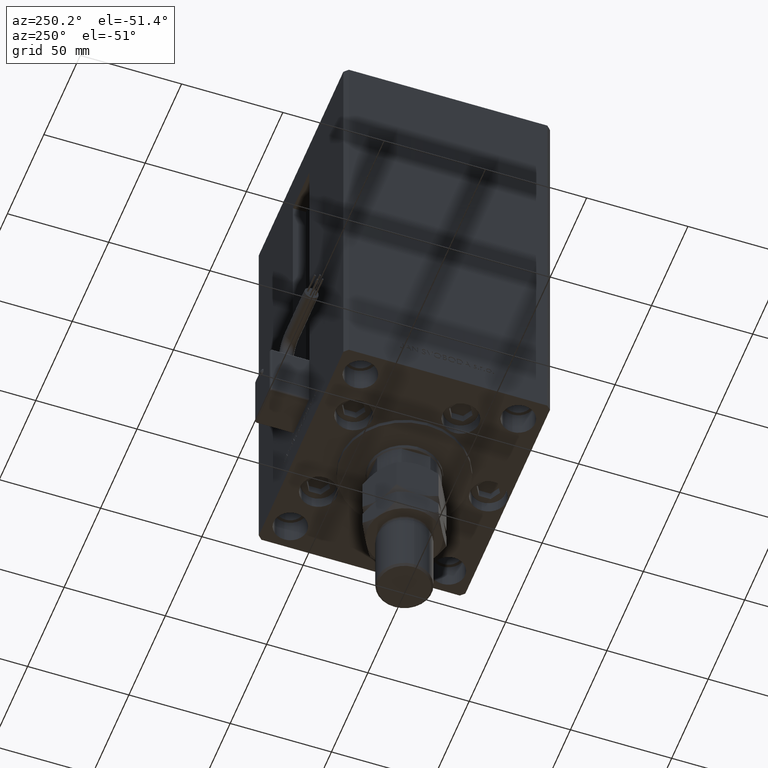
[diagram: clean part render]
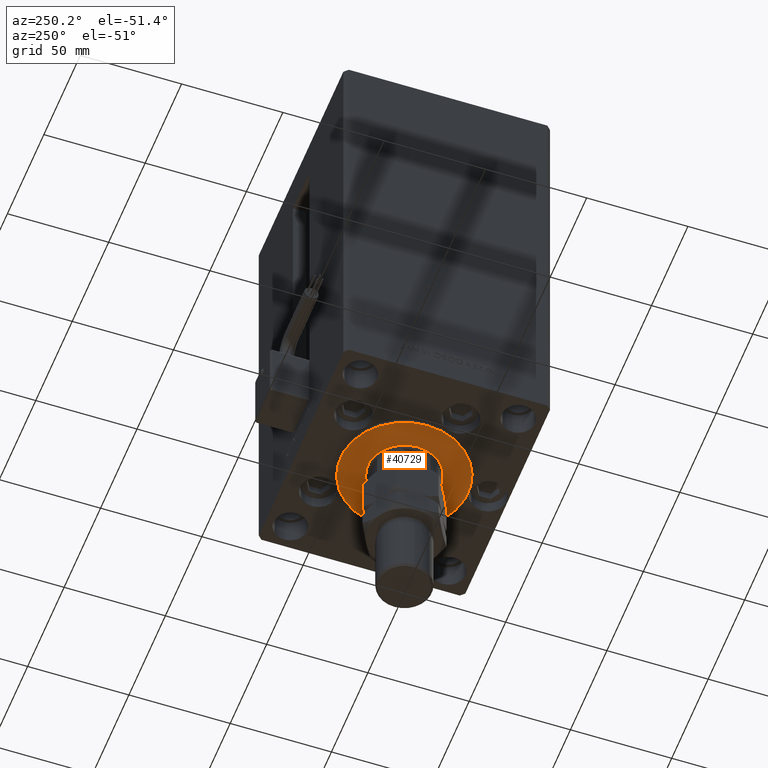
[diagram: same view with one face highlighted and labeled with its STEP entity id]
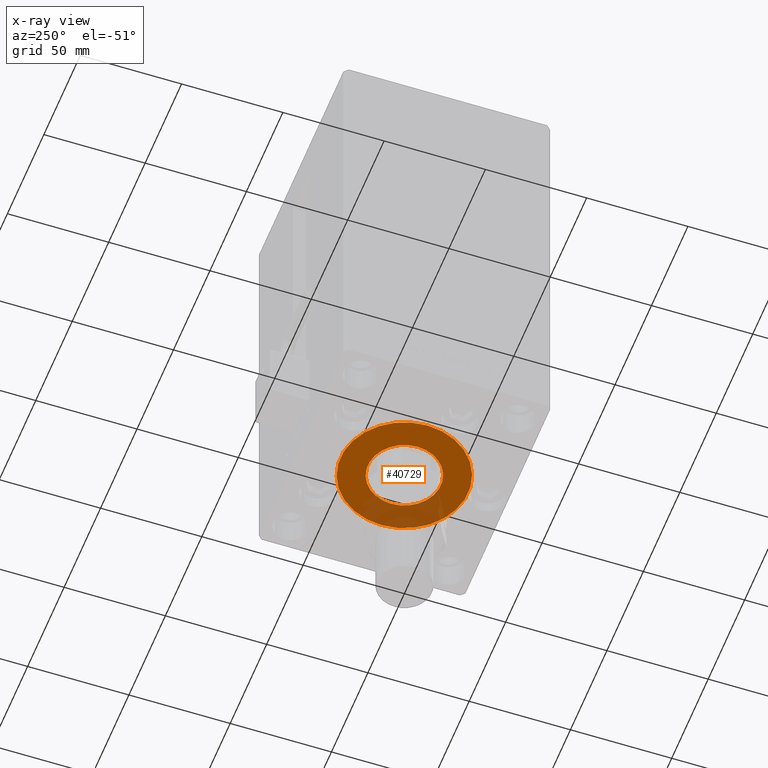
[diagram: x-ray of the same camera — body ghosted, the highlighted face saturated]
A machine part, auxiliary view. The second image highlights one B-rep face of the part: STEP entity #40729.
The next image is the same camera in x-ray: the body ghosted, the highlighted face saturated — about 25% of this face is hidden behind the body in this view.
In plain terms, the highlighted planar face has unit normal (0, 0, -1).
Its self-contained STEP definition (entity closure, byte-faithful):
#1712 = EDGE_CURVE ( 'NONE', #16641, #30553, #7989, .T. ) ;
#2473 = EDGE_CURVE ( 'NONE', #53216, #11545, #34068, .T. ) ;
#3767 = ORIENTED_EDGE ( 'NONE', *, *, #1712, .T. ) ;
#5867 = FACE_BOUND ( 'NONE', #9754, .T. ) ;
#7919 = ORIENTED_EDGE ( 'NONE', *, *, #15385, .F. ) ;
#7989 = CIRCLE ( 'NONE', #53161, 31.50000000000000000 ) ;
#8119 = CARTESIAN_POINT ( 'NONE',  ( 31.50000000000000000, -3.081256486593065689E-15, 2.000000000000000000 ) ) ;
#9263 = AXIS2_PLACEMENT_3D ( 'NONE', #37895, #21832, #38425 ) ;
#9754 = EDGE_LOOP ( 'NONE', ( #7919, #48059 ) ) ;
#11545 = VERTEX_POINT ( 'NONE', #29128 ) ;
#13770 = EDGE_LOOP ( 'NONE', ( #18302, #3767 ) ) ;
#13855 = EDGE_CURVE ( 'NONE', #30553, #16641, #31817, .T. ) ;
#14285 = PLANE ( 'NONE',  #26414 ) ;
#15385 = EDGE_CURVE ( 'NONE', #11545, #53216, #43149, .T. ) ;
#16641 = VERTEX_POINT ( 'NONE', #8119 ) ;
#18302 = ORIENTED_EDGE ( 'NONE', *, *, #13855, .T. ) ;
#21832 = DIRECTION ( 'NONE',  ( 0.000000000000000000, 0.000000000000000000, 1.000000000000000000 ) ) ;
#25626 = DIRECTION ( 'NONE',  ( 0.000000000000000000, 0.000000000000000000, 1.000000000000000000 ) ) ;
#26189 = CARTESIAN_POINT ( 'NONE',  ( -18.00000000000000000, -4.734529665441992555E-15, 2.000000000000000000 ) ) ;
#26414 = AXIS2_PLACEMENT_3D ( 'NONE', #39582, #47479, #46928 ) ;
#27125 = AXIS2_PLACEMENT_3D ( 'NONE', #53530, #28766, #48896 ) ;
#28766 = DIRECTION ( 'NONE',  ( 0.000000000000000000, 0.000000000000000000, 1.000000000000000000 ) ) ;
#29128 = CARTESIAN_POINT ( 'NONE',  ( 18.00000000000000000, -6.938893903907228378E-15, 2.000000000000000000 ) ) ;
#30553 = VERTEX_POINT ( 'NONE', #38178 ) ;
#31817 = CIRCLE ( 'NONE', #52663, 31.50000000000000000 ) ;
#33391 = DIRECTION ( 'NONE',  ( 1.000000000000000000, 0.000000000000000000, 0.000000000000000000 ) ) ;
#34068 = CIRCLE ( 'NONE', #27125, 18.00000000000000000 ) ;
#37738 = CARTESIAN_POINT ( 'NONE',  ( 0.000000000000000000, -6.938893903907228378E-15, 2.000000000000000000 ) ) ;
#37895 = CARTESIAN_POINT ( 'NONE',  ( 0.000000000000000000, -6.938893903907228378E-15, 2.000000000000000000 ) ) ;
#38178 = CARTESIAN_POINT ( 'NONE',  ( -31.50000000000000000, -6.938893903907228378E-15, 2.000000000000000000 ) ) ;
#38425 = DIRECTION ( 'NONE',  ( 1.000000000000000000, 0.000000000000000000, 0.000000000000000000 ) ) ;
#39582 = CARTESIAN_POINT ( 'NONE',  ( 0.000000000000000000, -6.938893903907228378E-15, 2.000000000000000000 ) ) ;
#40729 = ADVANCED_FACE ( 'NONE', ( #5867, #43652 ), #14285, .T. ) ;
#42225 = DIRECTION ( 'NONE',  ( 1.000000000000000000, 0.000000000000000000, 0.000000000000000000 ) ) ;
#43149 = CIRCLE ( 'NONE', #9263, 18.00000000000000000 ) ;
#43652 = FACE_OUTER_BOUND ( 'NONE', #13770, .T. ) ;
#45637 = DIRECTION ( 'NONE',  ( 0.000000000000000000, 0.000000000000000000, 1.000000000000000000 ) ) ;
#46928 = DIRECTION ( 'NONE',  ( 1.000000000000000000, 0.000000000000000000, -0.000000000000000000 ) ) ;
#47479 = DIRECTION ( 'NONE',  ( 0.000000000000000000, 0.000000000000000000, 1.000000000000000000 ) ) ;
#48059 = ORIENTED_EDGE ( 'NONE', *, *, #2473, .F. ) ;
#48896 = DIRECTION ( 'NONE',  ( 1.000000000000000000, 0.000000000000000000, 0.000000000000000000 ) ) ;
#50128 = CARTESIAN_POINT ( 'NONE',  ( 0.000000000000000000, -6.938893903907228378E-15, 2.000000000000000000 ) ) ;
#52663 = AXIS2_PLACEMENT_3D ( 'NONE', #50128, #25626, #42225 ) ;
#53161 = AXIS2_PLACEMENT_3D ( 'NONE', #37738, #45637, #33391 ) ;
#53216 = VERTEX_POINT ( 'NONE', #26189 ) ;
#53530 = CARTESIAN_POINT ( 'NONE',  ( 0.000000000000000000, -6.938893903907228378E-15, 2.000000000000000000 ) ) ;